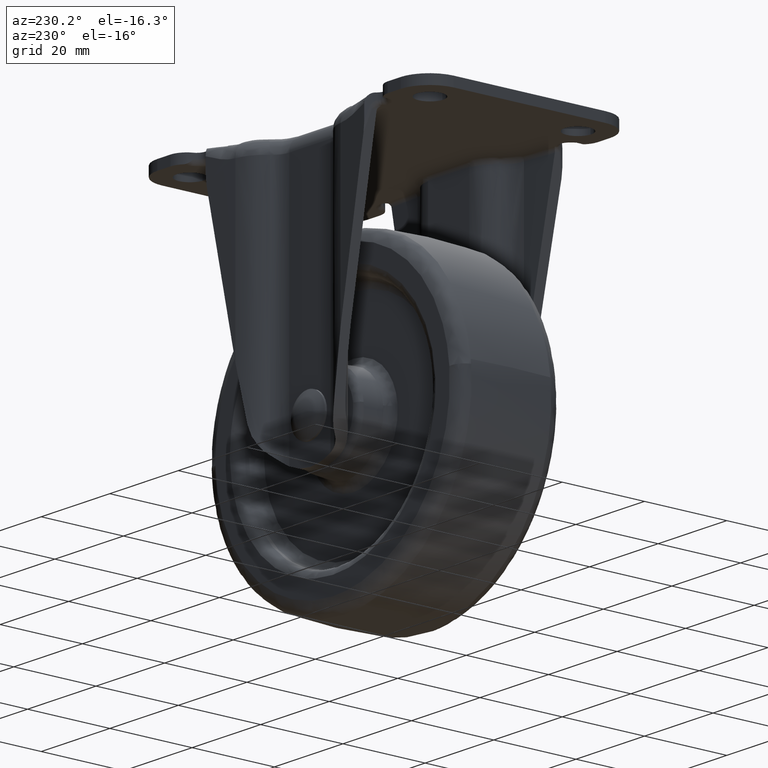
[diagram: clean part render]
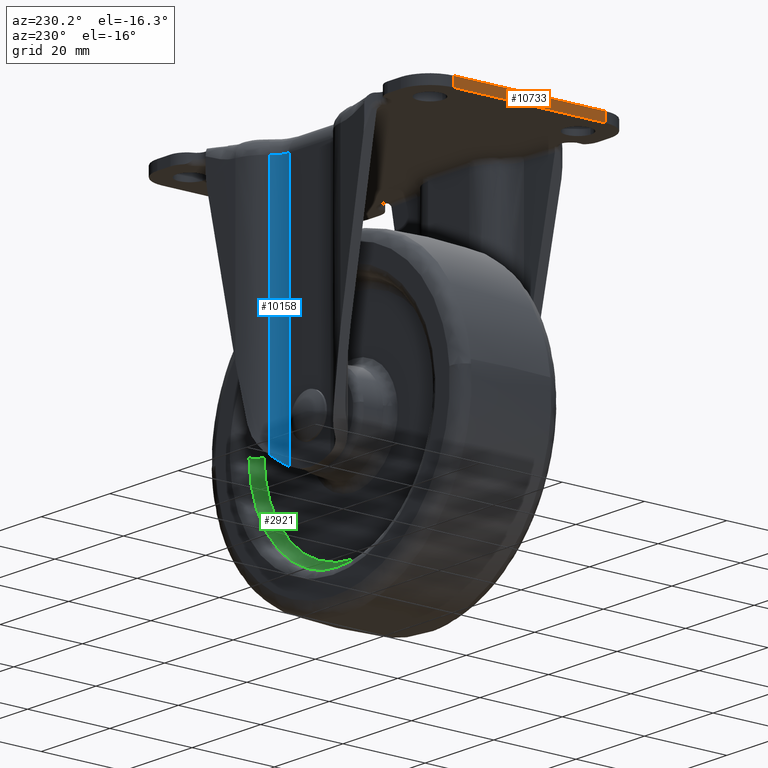
[diagram: same view with three faces highlighted in distinct colors, each labeled with its STEP entity id]
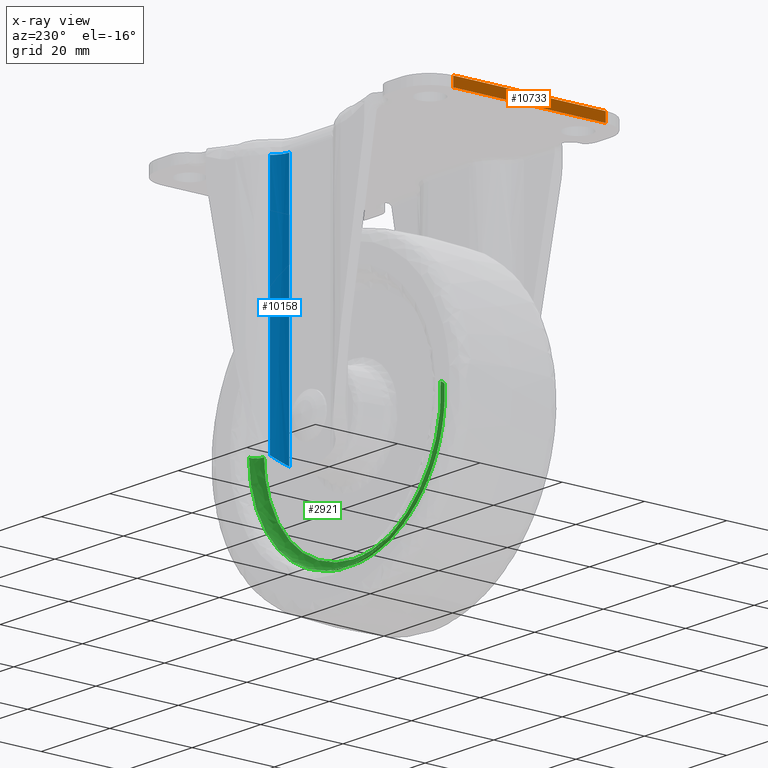
[diagram: x-ray of the same camera — body ghosted, the three highlighted faces saturated]
A machine part, auxiliary view with three faces highlighted in distinct colors.
The next image is the same camera in x-ray (body ghosted, the three faces saturated) — at least one of them is partly hidden behind the body in this view.
Their STEP definitions:

[orange] entity #10733 — the highlighted face is a freeform B-spline surface patch.
#10667=CARTESIAN_POINT('',(-42.500000000000000,-18.500000000000000,-2.299999999999970));
#10668=VERTEX_POINT('',#10667);
#10683=CARTESIAN_POINT('',(-42.500000000000000,-18.500000000000000,0.0));
#10684=VERTEX_POINT('',#10683);
#10698=CARTESIAN_POINT('',(-42.500000000000000,-18.500000000000000,-2.299999999999970));
#10699=CARTESIAN_POINT('',(-42.500000000000000,-18.500000000000000,0.0));
#10700=QUASI_UNIFORM_CURVE('',1,(#10698,#10699),.UNSPECIFIED.,.F.,.U.);
#10701=EDGE_CURVE('',#10668,#10684,#10700,.T.);
#10706=CARTESIAN_POINT('',(-42.500000000000000,-20.348149928286830,0.114884987324936));
#10707=CARTESIAN_POINT('',(-42.500000000000000,-20.348149928286830,-2.414884884506895));
#10708=CARTESIAN_POINT('',(-42.500000000000000,20.348150920704160,0.114884987324936));
#10709=CARTESIAN_POINT('',(-42.500000000000000,20.348150920704160,-2.414884884506895));
#10710=B_SPLINE_SURFACE_WITH_KNOTS('',1,1,((#10706,#10708),(#10707,#10709)),.UNSPECIFIED.,.F.,.F.,.U.,(2,2),(2,2),(0.0,2.529769871831831),(0.0,40.696300848990987),.UNSPECIFIED.);
#10711=CARTESIAN_POINT('',(-42.500000000000000,18.500000000000000,-2.299999999999970));
#10712=VERTEX_POINT('',#10711);
#10713=CARTESIAN_POINT('',(-42.500000000000000,-18.500000000000000,-2.299999999999970));
#10714=CARTESIAN_POINT('',(-42.500000000000000,18.500000000000000,-2.299999999999970));
#10715=QUASI_UNIFORM_CURVE('',1,(#10713,#10714),.UNSPECIFIED.,.F.,.U.);
#10716=EDGE_CURVE('',#10668,#10712,#10715,.T.);
#10717=ORIENTED_EDGE('',*,*,#10716,.F.);
#10718=ORIENTED_EDGE('',*,*,#10701,.T.);
#10719=CARTESIAN_POINT('',(-42.500000000000000,18.500000000000000,0.0));
#10720=VERTEX_POINT('',#10719);
#10721=CARTESIAN_POINT('',(-42.500000000000000,-18.500000000000000,0.0));
#10722=CARTESIAN_POINT('',(-42.500000000000000,18.500000000000000,0.0));
#10723=QUASI_UNIFORM_CURVE('',1,(#10721,#10722),.UNSPECIFIED.,.F.,.U.);
#10724=EDGE_CURVE('',#10684,#10720,#10723,.T.);
#10725=ORIENTED_EDGE('',*,*,#10724,.T.);
#10726=CARTESIAN_POINT('',(-42.500000000000000,18.500000000000000,-2.299999999999970));
#10727=CARTESIAN_POINT('',(-42.500000000000000,18.500000000000000,0.0));
#10728=QUASI_UNIFORM_CURVE('',1,(#10726,#10727),.UNSPECIFIED.,.F.,.U.);
#10729=EDGE_CURVE('',#10712,#10720,#10728,.T.);
#10730=ORIENTED_EDGE('',*,*,#10729,.F.);
#10731=EDGE_LOOP('',(#10717,#10718,#10725,#10730));
#10732=FACE_OUTER_BOUND('',#10731,.T.);
#10733=ADVANCED_FACE('',(#10732),#10710,.F.);

[blue] entity #10158 — the highlighted face is a freeform B-spline surface patch.
#7499=CARTESIAN_POINT('',(6.0,18.025001000000000,-4.0));
#7500=VERTEX_POINT('',#7499);
#7547=CARTESIAN_POINT('',(9.448886680217260,19.851990993398299,-4.0));
#7548=VERTEX_POINT('',#7547);
#7562=CARTESIAN_POINT('',(6.0,18.025001000000000,-4.0));
#7563=CARTESIAN_POINT('',(8.208352025065370,18.025001000000007,-4.000000000000000));
#7564=CARTESIAN_POINT('',(9.448886680217269,19.851990993398289,-4.0));
#7572=(BOUNDED_CURVE()B_SPLINE_CURVE(2,(#7562,#7563,#7564),.UNSPECIFIED.,.F.,.U.)CURVE()GEOMETRIC_REPRESENTATION_ITEM()QUASI_UNIFORM_CURVE()RATIONAL_B_SPLINE_CURVE((1.0,0.883670410059472,1.0))REPRESENTATION_ITEM(''));
#7573=EDGE_CURVE('',#7500,#7548,#7572,.T.);
#9021=CARTESIAN_POINT('',(6.0,18.025001000000000,-65.082561720332805));
#9022=VERTEX_POINT('',#9021);
#9036=CARTESIAN_POINT('',(9.448886680217450,19.851990993396299,-62.478523108068899));
#9037=VERTEX_POINT('',#9036);
#9038=CARTESIAN_POINT('',(5.999999999999995,18.025001000000000,-65.082561720332791));
#9039=CARTESIAN_POINT('',(6.178146464768824,18.025001000000010,-64.989878174950888));
#9040=CARTESIAN_POINT('',(6.353740029614437,18.036373231835579,-64.893280929592677));
#9041=CARTESIAN_POINT('',(6.613365797996905,18.069448094165960,-64.742559441948558));
#9042=CARTESIAN_POINT('',(6.699279774336736,18.083151115676252,-64.691347675492352));
#9043=CARTESIAN_POINT('',(6.869856788235096,18.115837802244450,-64.586985340783585));
#9044=CARTESIAN_POINT('',(6.954045001093365,18.134736892270901,-64.534122113596112));
#9045=CARTESIAN_POINT('',(7.202478007827157,18.198531359568289,-64.374190056717524));
#9046=CARTESIAN_POINT('',(7.363036317064059,18.250573911828411,-64.265511451510207));
#9047=CARTESIAN_POINT('',(7.674776395141302,18.372540488492941,-64.044488893935181));
#9048=CARTESIAN_POINT('',(7.825956005235498,18.442466508480031,-63.932142949827742));
#9049=CARTESIAN_POINT('',(8.046015093756896,18.560668912365379,-63.761280414335928));
#9050=CARTESIAN_POINT('',(8.118422505025142,18.602409609072641,-63.703792305605283));
#9051=CARTESIAN_POINT('',(8.259933460957520,18.689730968640930,-63.589012978213233));
#9052=CARTESIAN_POINT('',(8.329063910023651,18.735307949019958,-63.531708797036842));
#9053=CARTESIAN_POINT('',(8.531770837693021,18.877732902385830,-63.360209148724707));
#9054=CARTESIAN_POINT('',(8.660680176982085,18.980241639515061,-63.246413060454529));
#9055=CARTESIAN_POINT('',(8.906622092044543,19.200854160915750,-63.021002622246343));
#9056=CARTESIAN_POINT('',(9.023657100946185,19.318945769724419,-62.909379028409766));
#9057=CARTESIAN_POINT('',(9.190300276313510,19.509033236907591,-62.744806124237122));
#9058=CARTESIAN_POINT('',(9.244358412530675,19.574564428465251,-62.690430537897612));
#9059=CARTESIAN_POINT('',(9.349426884028761,19.710335422390958,-62.582931418185296));
#9060=CARTESIAN_POINT('',(9.400202480105932,19.780291628877869,-62.530044668729317));
#9061=CARTESIAN_POINT('',(9.448886680217450,19.851990993396299,-62.478523108068899));
#9062=B_SPLINE_CURVE_WITH_KNOTS('',3,(#9038,#9039,#9040,#9041,#9042,#9043,#9044,#9045,#9046,#9047,#9048,#9049,#9050,#9051,#9052,#9053,#9054,#9055,#9056,#9057,#9058,#9059,#9060,#9061),.UNSPECIFIED.,.F.,.U.,(4,2,2,2,2,2,2,2,2,2,2,4),(0.0,0.125000000000005,0.187500000000006,0.250000000000007,0.375000000000004,0.500000000000000,0.562499999999998,0.624999999999997,0.749999999999998,0.874999999999999,0.937500000000000,1.0),.UNSPECIFIED.);
#9063=EDGE_CURVE('',#9022,#9037,#9062,.T.);
#10119=CARTESIAN_POINT('',(6.0,18.025001000000000,-65.082561720332805));
#10120=CARTESIAN_POINT('',(6.0,18.025001000000000,-4.0));
#10121=QUASI_UNIFORM_CURVE('',1,(#10119,#10120),.UNSPECIFIED.,.F.,.U.);
#10122=EDGE_CURVE('',#9022,#7500,#10121,.T.);
#10134=CARTESIAN_POINT('',(9.547752422121585,20.004658201704189,-66.609625763341128));
#10135=CARTESIAN_POINT('',(9.547752422121585,20.004658201704189,-2.434759355916462));
#10136=CARTESIAN_POINT('',(8.258562424752576,17.915380636393543,-66.609625763341143));
#10137=CARTESIAN_POINT('',(8.258562424752576,17.915380636393543,-2.434759355916463));
#10138=CARTESIAN_POINT('',(5.806203042685015,18.029508001262350,-66.609625763341128));
#10139=CARTESIAN_POINT('',(5.806203042685015,18.029508001262350,-2.434759355916462));
#10147=(BOUNDED_SURFACE()B_SPLINE_SURFACE(1,2,((#10134,#10136,#10138),(#10135,#10137,#10139)),.UNSPECIFIED.,.F.,.F.,.U.)B_SPLINE_SURFACE_WITH_KNOTS((2,2),(3,3),(0.0,64.174866407424673),(0.0,4.545228472163852),.UNSPECIFIED.)GEOMETRIC_REPRESENTATION_ITEM()RATIONAL_B_SPLINE_SURFACE(((1.0,0.861658161486729,0.999942010066210),(1.0,0.861658161486729,0.999942010066210)))REPRESENTATION_ITEM('')SURFACE());
#10148=ORIENTED_EDGE('',*,*,#10122,.T.);
#10149=ORIENTED_EDGE('',*,*,#7573,.T.);
#10150=CARTESIAN_POINT('',(9.448886680217450,19.851990993396299,-62.478523108068899));
#10151=CARTESIAN_POINT('',(9.448886680217260,19.851990993398299,-4.0));
#10152=QUASI_UNIFORM_CURVE('',1,(#10150,#10151),.UNSPECIFIED.,.F.,.U.);
#10153=EDGE_CURVE('',#9037,#7548,#10152,.T.);
#10154=ORIENTED_EDGE('',*,*,#10153,.F.);
#10155=ORIENTED_EDGE('',*,*,#9063,.F.);
#10156=EDGE_LOOP('',(#10148,#10149,#10154,#10155));
#10157=FACE_OUTER_BOUND('',#10156,.T.);
#10158=ADVANCED_FACE('',(#10157),#10147,.F.);

[green] entity #2921 — the highlighted face is a freeform B-spline surface patch.
#746=CARTESIAN_POINT('',(-7.233454590730556,9.500000000000000,-83.549531136118389));
#747=VERTEX_POINT('',#746);
#748=CARTESIAN_POINT('',(0.0,9.500000000000000,-84.500000000000000));
#749=VERTEX_POINT('',#748);
#750=CARTESIAN_POINT('',(-7.233454590730556,9.500000000000000,-83.549531136118389));
#751=CARTESIAN_POINT('',(-3.679172635275790,9.500000000000000,-84.500000000000014));
#752=CARTESIAN_POINT('',(0.0,9.500000000000000,-84.500000000000000));
#760=(BOUNDED_CURVE()B_SPLINE_CURVE(2,(#750,#751,#752),.UNSPECIFIED.,.F.,.U.)B_SPLINE_CURVE_WITH_KNOTS((3,3),(0.955941417796835,1.0),.UNSPECIFIED.)CURVE()GEOMETRIC_REPRESENTATION_ITEM()RATIONAL_B_SPLINE_CURVE((0.914957991052144,0.948382160168632,1.0))REPRESENTATION_ITEM(''));
#761=EDGE_CURVE('',#747,#749,#760,.T.);
#763=CARTESIAN_POINT('',(27.997789237705501,9.499999997764583,-56.851849116841393));
#764=VERTEX_POINT('',#763);
#765=CARTESIAN_POINT('',(0.0,9.500000000000000,-84.500000000000000));
#766=CARTESIAN_POINT('',(27.650334037192412,9.499999999999998,-84.500000000000000));
#767=CARTESIAN_POINT('',(27.997789237705501,9.499999997764583,-56.851849116841393));
#775=(BOUNDED_CURVE()B_SPLINE_CURVE(2,(#765,#766,#767),.UNSPECIFIED.,.F.,.U.)B_SPLINE_CURVE_WITH_KNOTS((3,3),(0.0,0.247784295920377),.UNSPECIFIED.)CURVE()GEOMETRIC_REPRESENTATION_ITEM()RATIONAL_B_SPLINE_CURVE((1.0,0.709702639985823,0.994854295640903))REPRESENTATION_ITEM(''));
#776=EDGE_CURVE('',#749,#764,#775,.T.);
#795=CARTESIAN_POINT('',(-27.931838867527969,9.499999997759819,-54.547468955828478));
#796=VERTEX_POINT('',#795);
#810=CARTESIAN_POINT('',(-21.605491531961281,9.499999999999776,-74.310186289377327));
#811=VERTEX_POINT('',#810);
#812=CARTESIAN_POINT('',(-27.931838867527972,9.499999997759819,-54.547468955828478));
#813=CARTESIAN_POINT('',(-28.000000000000004,9.500000000000000,-55.522544755448720));
#814=CARTESIAN_POINT('',(-28.0,9.500000000000000,-56.500000000000000));
#815=CARTESIAN_POINT('',(-28.0,9.500000000000000,-66.553024387053227));
#816=CARTESIAN_POINT('',(-21.605491531961270,9.499999999999776,-74.310186289377327));
#824=(BOUNDED_CURVE()B_SPLINE_CURVE(2,(#812,#813,#814,#815,#816),.UNSPECIFIED.,.F.,.U.)B_SPLINE_CURVE_WITH_KNOTS((3,2,3),(0.737833686534406,0.750000000000000,0.860504598711097),.UNSPECIFIED.)CURVE()GEOMETRIC_REPRESENTATION_ITEM()RATIONAL_B_SPLINE_CURVE((0.972879876385526,0.985746277151875,1.0,0.870535809559271,0.855522726415421))REPRESENTATION_ITEM(''));
#825=EDGE_CURVE('',#796,#811,#824,.T.);
#935=CARTESIAN_POINT('',(-21.605491531961270,9.499999999999776,-74.310186289377327));
#936=CARTESIAN_POINT('',(-15.899511423948557,9.500000000000002,-81.232096195437677));
#937=CARTESIAN_POINT('',(-7.233454590730556,9.500000000000000,-83.549531136118389));
#945=(BOUNDED_CURVE()B_SPLINE_CURVE(2,(#935,#936,#937),.UNSPECIFIED.,.F.,.U.)B_SPLINE_CURVE_WITH_KNOTS((3,3),(0.860504598711097,0.955941417796836),.UNSPECIFIED.)CURVE()GEOMETRIC_REPRESENTATION_ITEM()RATIONAL_B_SPLINE_CURVE((0.855522726415421,0.842556742043452,0.914957991052145))REPRESENTATION_ITEM(''));
#946=EDGE_CURVE('',#811,#747,#945,.T.);
#2826=CARTESIAN_POINT('',(-27.927009480152485,9.639074381199633,-54.547808095385086));
#2827=CARTESIAN_POINT('',(-27.982880319829910,9.639074381199629,-55.347066337183485));
#2828=CARTESIAN_POINT('',(-27.992948339578547,9.639074381199629,-56.148211718988399));
#2829=CARTESIAN_POINT('',(-28.344736620590151,9.639074381199629,-84.141160058566939));
#2830=CARTESIAN_POINT('',(-0.351788281011595,9.639074381199629,-84.492948339578561));
#2831=CARTESIAN_POINT('',(27.641160058566957,9.639074381199629,-84.844736620590155));
#2832=CARTESIAN_POINT('',(27.992948339578547,9.639074381199629,-56.851788281011601));
#2833=CARTESIAN_POINT('',(-28.086536227114522,7.344921661239746,-54.536656639150202));
#2834=CARTESIAN_POINT('',(-28.142726216370434,7.344921661239747,-55.340480463503660));
#2835=CARTESIAN_POINT('',(-28.152851747412569,7.344921661239747,-56.146202207725509));
#2836=CARTESIAN_POINT('',(-28.506649539687039,7.344921661239744,-84.299053955138064));
#2837=CARTESIAN_POINT('',(-0.353797792274483,7.344921661239747,-84.652851747412569));
#2838=CARTESIAN_POINT('',(27.799053955138071,7.344921661239744,-85.006649539687061));
#2839=CARTESIAN_POINT('',(28.152851747412569,7.344921661239747,-56.853797792274484));
#2840=CARTESIAN_POINT('',(-25.797968479684179,7.504841511730626,-54.696635223068107));
#2841=CARTESIAN_POINT('',(-25.849579955017987,7.504841511730625,-55.434961284929379));
#2842=CARTESIAN_POINT('',(-25.858880430112272,7.504841511730624,-56.175030618960143));
#2843=CARTESIAN_POINT('',(-26.183849811152136,7.504841511730626,-82.033911049072458));
#2844=CARTESIAN_POINT('',(-0.324969381039858,7.504841511730624,-82.358880430112265));
#2845=CARTESIAN_POINT('',(25.533911049072422,7.504841511730626,-82.683849811152157));
#2846=CARTESIAN_POINT('',(25.858880430112272,7.504841511730624,-56.824969381039857));
#2854=(BOUNDED_SURFACE()B_SPLINE_SURFACE(2,2,((#2826,#2833,#2840),(#2827,#2834,#2841),(#2828,#2835,#2842),(#2829,#2836,#2843),(#2830,#2837,#2844),(#2831,#2838,#2845),(#2832,#2839,#2846)),.UNSPECIFIED.,.F.,.F.,.U.)B_SPLINE_SURFACE_WITH_KNOTS((3,2,2,3),(3,3),(0.0,1.855354138187667,48.239251828011270,94.623149517834875),(0.0,3.644752235395576),.UNSPECIFIED.)GEOMETRIC_REPRESENTATION_ITEM()RATIONAL_B_SPLINE_SURFACE(((0.889999333047304,0.584039395928140,0.890000007567252),(0.899812904436214,0.590479302221386,0.899813586393752),(0.910479828974353,0.597479199785731,0.910480519016227),(0.643806461201333,0.422481593786402,0.643806949134621),(0.910479828974353,0.597479199785731,0.910480519016227),(0.643806461201333,0.422481593786402,0.643806949134621),(0.910479828974353,0.597479199785731,0.910480519016227)))REPRESENTATION_ITEM('')SURFACE());
#2855=ORIENTED_EDGE('',*,*,#825,.F.);
#2856=CARTESIAN_POINT('',(-25.936707521412391,7.500000000000000,-54.686935458919137));
#2857=VERTEX_POINT('',#2856);
#2858=CARTESIAN_POINT('',(-27.931838867527976,9.499999997759819,-54.547468955828485));
#2859=CARTESIAN_POINT('',(-27.931838863062641,7.500000003131343,-54.547468956200042));
#2860=CARTESIAN_POINT('',(-25.936707521412387,7.499999999999999,-54.686935458919145));
#2868=(BOUNDED_CURVE()B_SPLINE_CURVE(2,(#2858,#2859,#2860),.UNSPECIFIED.,.F.,.U.)B_SPLINE_CURVE_WITH_KNOTS((3,3),(-1.725134640984520,-0.274865358323773),.UNSPECIFIED.)CURVE()GEOMETRIC_REPRESENTATION_ITEM()RATIONAL_B_SPLINE_CURVE((0.863472074571475,0.610566960541864,0.863472074812722))REPRESENTATION_ITEM(''));
#2869=EDGE_CURVE('',#796,#2857,#2868,.T.);
#2870=ORIENTED_EDGE('',*,*,#2869,.T.);
#2871=CARTESIAN_POINT('',(0.0,7.500000000000000,-82.500000000000000));
#2872=VERTEX_POINT('',#2871);
#2873=CARTESIAN_POINT('',(-25.936707521412391,7.500000000000000,-54.686935458919137));
#2874=CARTESIAN_POINT('',(-26.0,7.500000000000001,-55.592362987247270));
#2875=CARTESIAN_POINT('',(-26.0,7.500000000000000,-56.500000000000000));
#2876=CARTESIAN_POINT('',(-26.000000000000007,7.500000000000000,-82.500000000000014));
#2877=CARTESIAN_POINT('',(0.0,7.500000000000000,-82.500000000000000));
#2885=(BOUNDED_CURVE()B_SPLINE_CURVE(2,(#2873,#2874,#2875,#2876,#2877),.UNSPECIFIED.,.F.,.U.)B_SPLINE_CURVE_WITH_KNOTS((3,2,3),(0.737833686534999,0.750000000000000,1.0),.UNSPECIFIED.)CURVE()GEOMETRIC_REPRESENTATION_ITEM()RATIONAL_B_SPLINE_CURVE((0.972879876386781,0.985746277152570,1.0,0.707106781186547,1.0))REPRESENTATION_ITEM(''));
#2886=EDGE_CURVE('',#2857,#2872,#2885,.T.);
#2887=ORIENTED_EDGE('',*,*,#2886,.T.);
#2888=CARTESIAN_POINT('',(25.997947166218221,7.500000000000000,-56.826717037915543));
#2889=VERTEX_POINT('',#2888);
#2890=CARTESIAN_POINT('',(0.0,7.500000000000000,-82.500000000000000));
#2891=CARTESIAN_POINT('',(25.675310176137039,7.499999999999999,-82.499999999999986));
#2892=CARTESIAN_POINT('',(25.997947166218221,7.500000000000000,-56.826717037915543));
#2900=(BOUNDED_CURVE()B_SPLINE_CURVE(2,(#2890,#2891,#2892),.UNSPECIFIED.,.F.,.U.)B_SPLINE_CURVE_WITH_KNOTS((3,3),(0.0,0.247784295911776),.UNSPECIFIED.)CURVE()GEOMETRIC_REPRESENTATION_ITEM()RATIONAL_B_SPLINE_CURVE((1.0,0.709702639995900,0.994854295621105))REPRESENTATION_ITEM(''));
#2901=EDGE_CURVE('',#2872,#2889,#2900,.T.);
#2902=ORIENTED_EDGE('',*,*,#2901,.T.);
#2903=CARTESIAN_POINT('',(27.997789237705494,9.499999997764583,-56.851849116841393));
#2904=CARTESIAN_POINT('',(27.997789233236361,7.500000033859175,-56.851849116677712));
#2905=CARTESIAN_POINT('',(25.997947166218218,7.500000000000000,-56.826717037915543));
#2913=(BOUNDED_CURVE()B_SPLINE_CURVE(2,(#2903,#2904,#2905),.UNSPECIFIED.,.F.,.U.)B_SPLINE_CURVE_WITH_KNOTS((3,3),(-1.725134640989405,-0.274865374079396),.UNSPECIFIED.)CURVE()GEOMETRIC_REPRESENTATION_ITEM()RATIONAL_B_SPLINE_CURVE((0.883342148835138,0.624617227633744,0.883342143458654))REPRESENTATION_ITEM(''));
#2914=EDGE_CURVE('',#764,#2889,#2913,.T.);
#2915=ORIENTED_EDGE('',*,*,#2914,.F.);
#2916=ORIENTED_EDGE('',*,*,#776,.F.);
#2917=ORIENTED_EDGE('',*,*,#761,.F.);
#2918=ORIENTED_EDGE('',*,*,#946,.F.);
#2919=EDGE_LOOP('',(#2855,#2870,#2887,#2902,#2915,#2916,#2917,#2918));
#2920=FACE_OUTER_BOUND('',#2919,.T.);
#2921=ADVANCED_FACE('',(#2920),#2854,.F.);